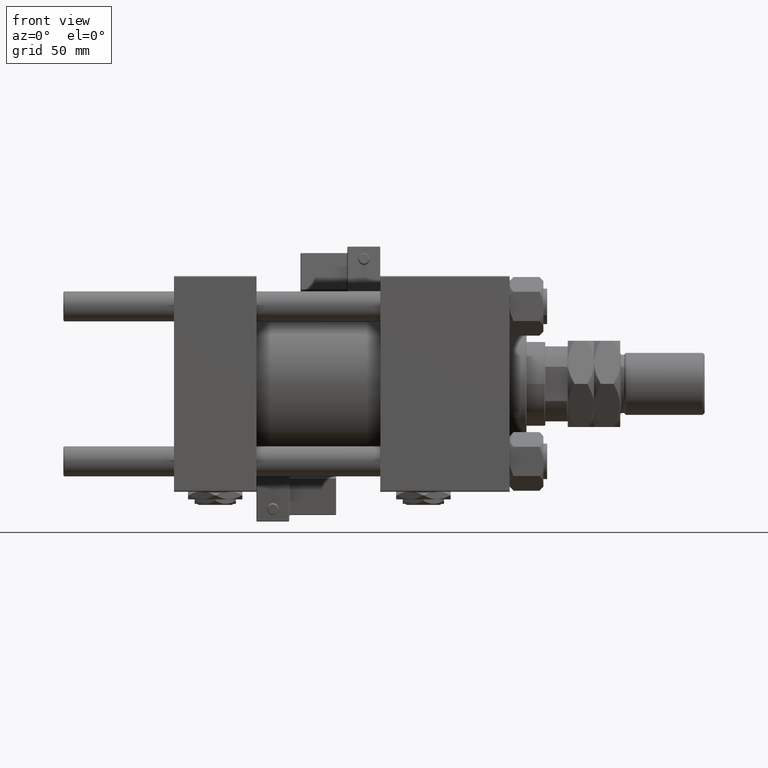
[diagram: clean part render]
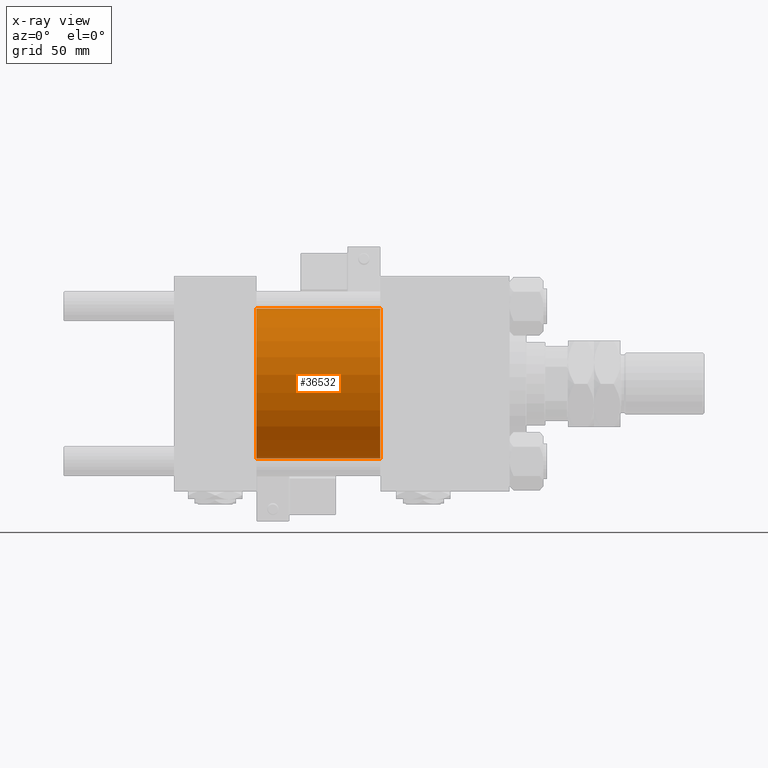
[diagram: x-ray — body ghosted, one internal face saturated and labeled with its STEP entity id]
A machine part, front view, then the same camera in x-ray: the body is ghosted and one INTERNAL B-rep face — a face not visible from any outside direction — is saturated and labeled: STEP entity #36532.
In plain terms, the highlighted cylindrical surface (partial cylindrical patch) has radius 40 mm, axis along (-1, -0, -0).
Its self-contained STEP definition (entity closure, byte-faithful):
#321 = CARTESIAN_POINT ( 'NONE',  ( 110.0000000000000000, 4.898587196589413026E-15, -40.00000000000000000 ) ) ;
#515 = EDGE_CURVE ( 'NONE', #53893, #14504, #39224, .T. ) ;
#805 = CARTESIAN_POINT ( 'NONE',  ( 110.0000000000000000, 0.000000000000000000, 40.00000000000000000 ) ) ;
#1387 = ORIENTED_EDGE ( 'NONE', *, *, #17048, .F. ) ;
#2717 = AXIS2_PLACEMENT_3D ( 'NONE', #52697, #30863, #21500 ) ;
#3181 = FACE_OUTER_BOUND ( 'NONE', #36830, .T. ) ;
#3496 = ORIENTED_EDGE ( 'NONE', *, *, #16542, .T. ) ;
#6563 = DIRECTION ( 'NONE',  ( 0.000000000000000000, 0.000000000000000000, -1.000000000000000000 ) ) ;
#8009 = CARTESIAN_POINT ( 'NONE',  ( 44.00000000000000000, 0.000000000000000000, 40.00000000000000000 ) ) ;
#8010 = VECTOR ( 'NONE', #22415, 1000.000000000000000 ) ;
#10224 = VERTEX_POINT ( 'NONE', #8009 ) ;
#11129 = DIRECTION ( 'NONE',  ( 1.000000000000000000, 0.000000000000000000, 0.000000000000000000 ) ) ;
#14504 = VERTEX_POINT ( 'NONE', #43736 ) ;
#16446 = VERTEX_POINT ( 'NONE', #48344 ) ;
#16542 = EDGE_CURVE ( 'NONE', #16446, #53893, #49713, .T. ) ;
#16560 = CARTESIAN_POINT ( 'NONE',  ( 110.0000000000000000, 0.000000000000000000, 0.000000000000000000 ) ) ;
#17048 = EDGE_CURVE ( 'NONE', #16446, #10224, #22692, .T. ) ;
#21500 = DIRECTION ( 'NONE',  ( 0.000000000000000000, 0.000000000000000000, -1.000000000000000000 ) ) ;
#22124 = ORIENTED_EDGE ( 'NONE', *, *, #42579, .F. ) ;
#22415 = DIRECTION ( 'NONE',  ( -1.000000000000000000, -0.000000000000000000, -0.000000000000000000 ) ) ;
#22692 = LINE ( 'NONE', #805, #8010 ) ;
#23628 = CIRCLE ( 'NONE', #2717, 40.00000000000000000 ) ;
#25644 = VECTOR ( 'NONE', #48775, 1000.000000000000000 ) ;
#27225 = ORIENTED_EDGE ( 'NONE', *, *, #515, .T. ) ;
#28852 = AXIS2_PLACEMENT_3D ( 'NONE', #53446, #11129, #6563 ) ;
#29197 = CARTESIAN_POINT ( 'NONE',  ( 110.0000000000000000, 4.898587196589413026E-15, -40.00000000000000000 ) ) ;
#30863 = DIRECTION ( 'NONE',  ( 1.000000000000000000, 0.000000000000000000, 0.000000000000000000 ) ) ;
#33888 = DIRECTION ( 'NONE',  ( -1.000000000000000000, -0.000000000000000000, -0.000000000000000000 ) ) ;
#36532 = ADVANCED_FACE ( 'NONE', ( #3181 ), #42646, .F. ) ;
#36830 = EDGE_LOOP ( 'NONE', ( #3496, #27225, #22124, #1387 ) ) ;
#38788 = AXIS2_PLACEMENT_3D ( 'NONE', #16560, #33888, #51176 ) ;
#39224 = LINE ( 'NONE', #321, #25644 ) ;
#42579 = EDGE_CURVE ( 'NONE', #10224, #14504, #23628, .T. ) ;
#42646 = CYLINDRICAL_SURFACE ( 'NONE', #38788, 40.00000000000000000 ) ;
#43736 = CARTESIAN_POINT ( 'NONE',  ( 44.00000000000000000, 4.898587196589413026E-15, -40.00000000000000000 ) ) ;
#48344 = CARTESIAN_POINT ( 'NONE',  ( 110.0000000000000000, 0.000000000000000000, 40.00000000000000000 ) ) ;
#48775 = DIRECTION ( 'NONE',  ( -1.000000000000000000, -0.000000000000000000, -0.000000000000000000 ) ) ;
#49713 = CIRCLE ( 'NONE', #28852, 40.00000000000000000 ) ;
#51176 = DIRECTION ( 'NONE',  ( 0.000000000000000000, 0.000000000000000000, 1.000000000000000000 ) ) ;
#52697 = CARTESIAN_POINT ( 'NONE',  ( 44.00000000000000000, 0.000000000000000000, 0.000000000000000000 ) ) ;
#53446 = CARTESIAN_POINT ( 'NONE',  ( 110.0000000000000000, 0.000000000000000000, 0.000000000000000000 ) ) ;
#53893 = VERTEX_POINT ( 'NONE', #29197 ) ;